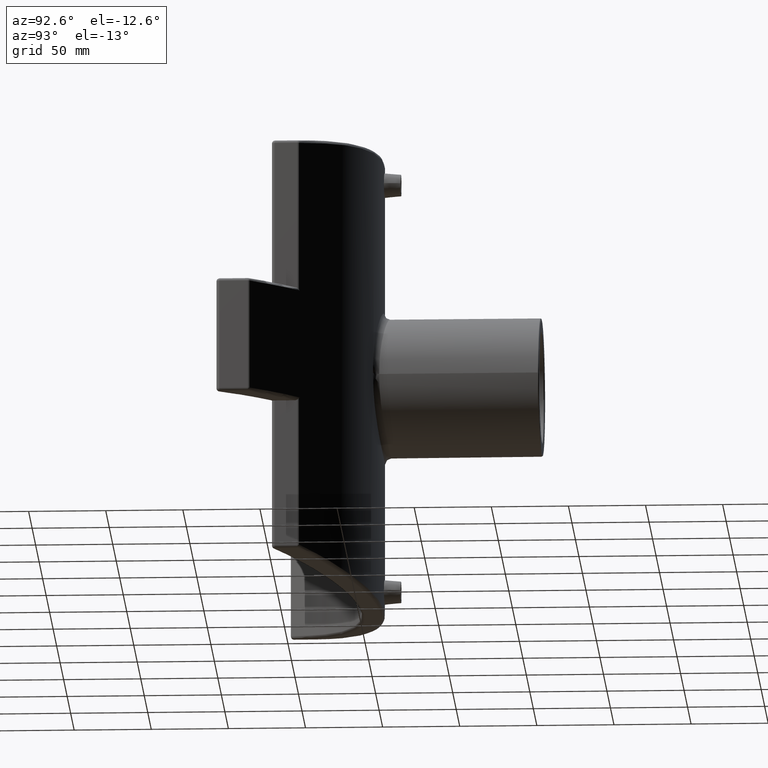
[diagram: clean part render]
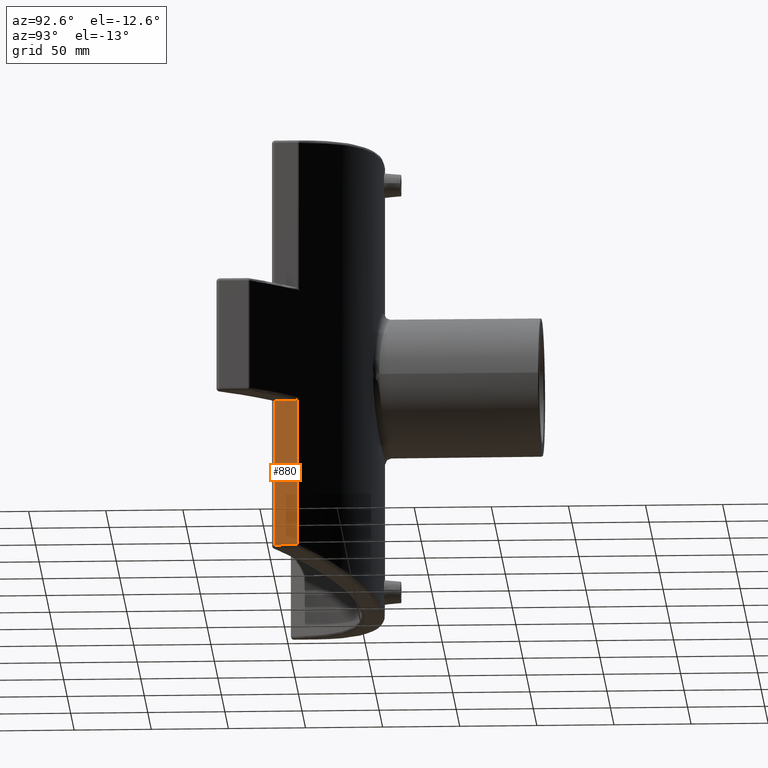
[diagram: same view with one face highlighted and labeled with its STEP entity id]
A machine part, auxiliary view. The second image highlights one B-rep face of the part: STEP entity #880.
In plain terms, the highlighted planar face has unit normal (1, 0, 0).
Its self-contained STEP definition (entity closure, byte-faithful):
#33=LINE('',#1748,#63);
#54=LINE('',#2207,#84);
#55=LINE('',#2210,#85);
#58=LINE('',#2215,#88);
#63=VECTOR('',#1104,96.3515375358321);
#84=VECTOR('',#1259,95.8920048770969);
#85=VECTOR('',#1264,14.5110746154759);
#88=VECTOR('',#1271,12.8466166978308);
#114=B_SPLINE_CURVE_WITH_KNOTS('',3,(#2198,#2199,#2200,#2201,#2202,#2203),
 .UNSPECIFIED.,.F.,.F.,(4,2,4),(-0.3426547615418,-0.237671393353548,-0.178267981115463),
 .UNSPECIFIED.);
#154=PLANE('',#1006);
#243=FACE_OUTER_BOUND('',#332,.T.);
#332=EDGE_LOOP('',(#800,#801,#802,#803,#804));
#429=VERTEX_POINT('',#1743);
#430=VERTEX_POINT('',#1747);
#431=VERTEX_POINT('',#1760);
#466=VERTEX_POINT('',#2196);
#467=VERTEX_POINT('',#2206);
#503=EDGE_CURVE('',#430,#429,#33,.T.);
#574=EDGE_CURVE('',#466,#430,#114,.T.);
#576=EDGE_CURVE('',#431,#467,#54,.T.);
#578=EDGE_CURVE('',#429,#431,#55,.T.);
#581=EDGE_CURVE('',#466,#467,#58,.T.);
#800=ORIENTED_EDGE('',*,*,#503,.F.);
#801=ORIENTED_EDGE('',*,*,#574,.F.);
#802=ORIENTED_EDGE('',*,*,#581,.T.);
#803=ORIENTED_EDGE('',*,*,#576,.F.);
#804=ORIENTED_EDGE('',*,*,#578,.F.);
#880=ADVANCED_FACE('',(#243),#154,.T.);
#1006=AXIS2_PLACEMENT_3D('',#2222,#1284,#1285);
#1104=DIRECTION('',(0.,0.,-1.));
#1259=DIRECTION('',(0.,0.,1.));
#1264=DIRECTION('',(0.,-1.,0.));
#1271=DIRECTION('',(0.,-1.,0.));
#1284=DIRECTION('center_axis',(1.,0.,0.));
#1285=DIRECTION('ref_axis',(0.,1.,0.));
#1743=CARTESIAN_POINT('',(137.25,164.549194771655,-133.392004877097));
#1747=CARTESIAN_POINT('',(137.25,164.549194771655,-37.0404673412648));
#1748=CARTESIAN_POINT('',(137.25,164.549194771655,0.));
#1760=CARTESIAN_POINT('',(137.25,150.038120156179,-133.392004877097));
#2196=CARTESIAN_POINT('',(137.25,162.88473685401,-37.5));
#2198=CARTESIAN_POINT('Ctrl Pts',(137.25,162.88473685401,-37.5));
#2199=CARTESIAN_POINT('Ctrl Pts',(137.25,163.234681414637,-37.5));
#2200=CARTESIAN_POINT('Ctrl Pts',(137.25,163.649187455461,-37.4327031675438));
#2201=CARTESIAN_POINT('Ctrl Pts',(137.25,164.165752159976,-37.2499010546377));
#2202=CARTESIAN_POINT('Ctrl Pts',(137.25,164.368245943333,-37.1555248492732));
#2203=CARTESIAN_POINT('Ctrl Pts',(137.25,164.549194771655,-37.0404673412648));
#2206=CARTESIAN_POINT('',(137.25,150.038120156179,-37.5));
#2207=CARTESIAN_POINT('',(137.25,150.038120156179,0.));
#2210=CARTESIAN_POINT('',(137.25,0.,-133.392004877097));
#2215=CARTESIAN_POINT('',(137.25,141.631632000128,-37.5));
#2222=CARTESIAN_POINT('Origin',(137.25,145.473150443647,0.));